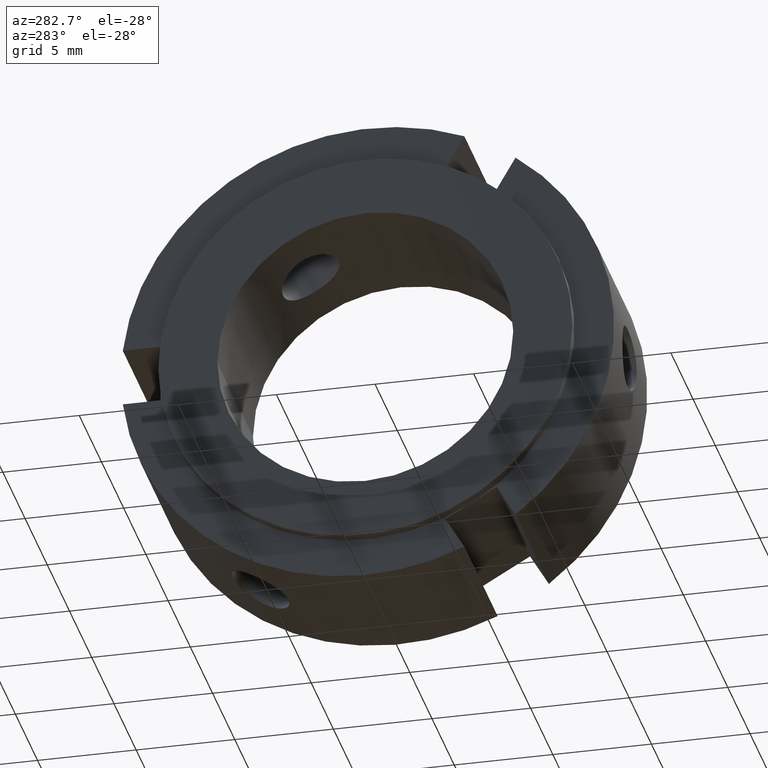
[diagram: clean part render]
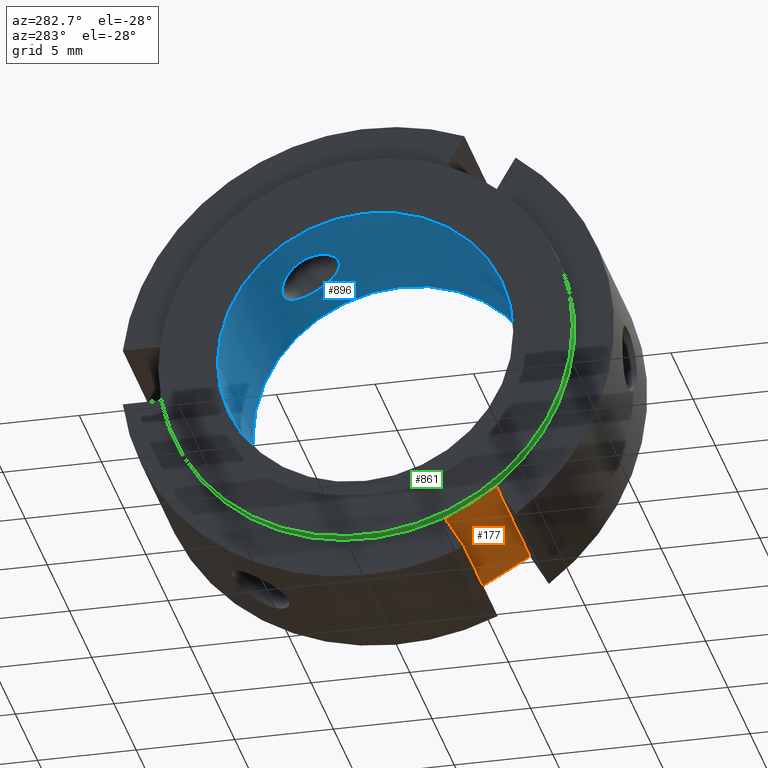
[diagram: same view with three faces highlighted in distinct colors, each labeled with its STEP entity id]
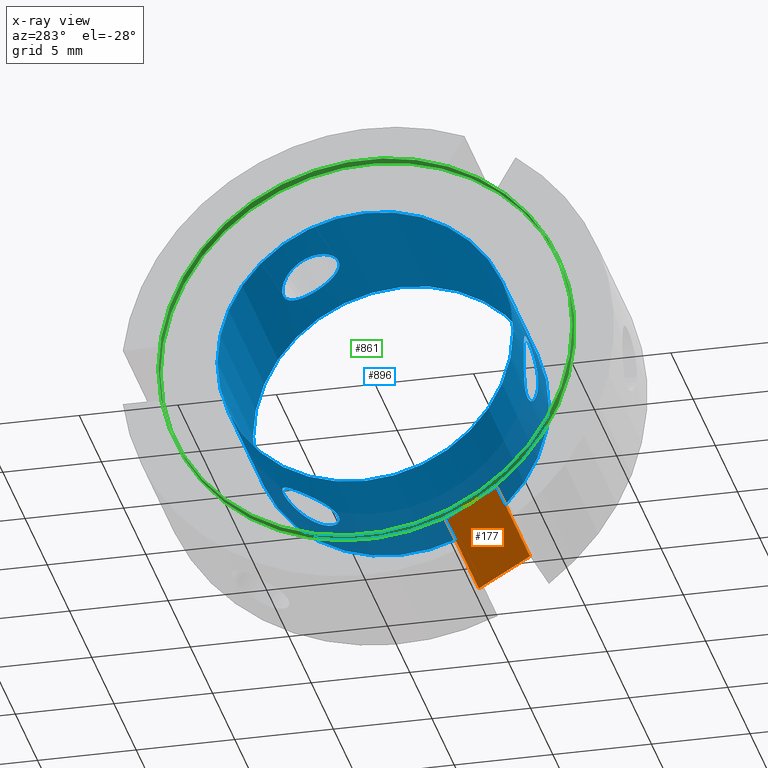
[diagram: x-ray of the same camera — body ghosted, the three highlighted faces saturated]
A machine part, auxiliary view with three faces highlighted in distinct colors.
The next image is the same camera in x-ray (body ghosted, the three faces saturated) — at least one of them is partly hidden behind the body in this view.
Their STEP definitions:

[orange] entity #177 — the highlighted planar face has unit normal (0, 0.5, 0.866).
#73=CARTESIAN_POINT('',(0.499999999999998,-6.549038105676662,-8.343266739736601));
#74=VERTEX_POINT('',#73);
#83=CARTESIAN_POINT('',(7.999999999999996,-6.549038105676662,-8.343266739736601));
#84=VERTEX_POINT('',#83);
#85=CARTESIAN_POINT('',(7.999999999999996,-6.549038105676662,-8.343266739736601));
#86=DIRECTION('',(-1.0,0.0,0.0));
#87=VECTOR('',#86,7.499999999999998);
#88=LINE('',#85,#87);
#89=EDGE_CURVE('',#84,#74,#88,.T.);
#115=CARTESIAN_POINT('',(0.499999999999998,-3.950961894323346,-9.843266739736604));
#116=VERTEX_POINT('',#115);
#131=CARTESIAN_POINT('',(7.999999999999996,-3.950961894323346,-9.843266739736604));
#132=VERTEX_POINT('',#131);
#139=CARTESIAN_POINT('',(7.999999999999996,-3.950961894323346,-9.843266739736604));
#140=DIRECTION('',(-1.0,0.0,0.0));
#141=VECTOR('',#140,7.499999999999998);
#142=LINE('',#139,#141);
#143=EDGE_CURVE('',#132,#116,#142,.T.);
#148=CARTESIAN_POINT('',(7.999999999999996,-3.950961894323346,-9.843266739736604));
#149=DIRECTION('',(0.0,0.500000000000001,0.866025403784438));
#150=DIRECTION('',(0.0,-0.866025403784438,0.500000000000000));
#151=AXIS2_PLACEMENT_3D('',#148,#149,#150);
#152=PLANE('',#151);
#153=CARTESIAN_POINT('',(0.499999999999998,-5.250000000000004,-9.093266739736603));
#154=VERTEX_POINT('',#153);
#155=CARTESIAN_POINT('',(0.499999999999998,-3.950961894323348,-9.843266739736604));
#156=DIRECTION('',(0.0,-0.866025403784438,0.500000000000000));
#157=VECTOR('',#156,1.500000000000002);
#158=LINE('',#155,#157);
#159=EDGE_CURVE('',#116,#154,#158,.T.);
#160=ORIENTED_EDGE('',*,*,#159,.F.);
#161=ORIENTED_EDGE('',*,*,#143,.F.);
#162=CARTESIAN_POINT('',(7.999999999999996,-6.549038105676665,-8.343266739736606));
#163=DIRECTION('',(0.0,0.866025403784438,-0.500000000000001));
#164=VECTOR('',#163,3.000000000000000);
#165=LINE('',#162,#164);
#166=EDGE_CURVE('',#84,#132,#165,.T.);
#167=ORIENTED_EDGE('',*,*,#166,.F.);
#168=ORIENTED_EDGE('',*,*,#89,.T.);
#169=CARTESIAN_POINT('',(0.499999999999998,-5.250000000000008,-9.093266739736603));
#170=DIRECTION('',(0.0,-0.866025403784438,0.500000000000000));
#171=VECTOR('',#170,1.499999999999999);
#172=LINE('',#169,#171);
#173=EDGE_CURVE('',#154,#74,#172,.T.);
#174=ORIENTED_EDGE('',*,*,#173,.F.);
#175=EDGE_LOOP('',(#160,#161,#167,#168,#174));
#176=FACE_OUTER_BOUND('',#175,.T.);
#177=ADVANCED_FACE('',(#176),#152,.F.);

[blue] entity #896 — the highlighted cylindrical surface (bore or boss wall) has radius 7.5 mm, axis along (1, 0, 0).
#224=CARTESIAN_POINT('',(3.999999999999996,5.065191645140263,5.531169279456314));
#225=VERTEX_POINT('',#224);
#226=CARTESIAN_POINT('',(3.999999999999996,5.065191645140262,5.531169279456316));
#227=CARTESIAN_POINT('',(3.795760596327584,5.065191645140262,5.531169279456316));
#228=CARTESIAN_POINT('',(3.578365321611677,5.034444204255705,5.559812424690974));
#229=CARTESIAN_POINT('',(3.179185575143308,4.907880269326058,5.671847473205590));
#230=CARTESIAN_POINT('',(2.997343182592460,4.811831646202085,5.754770154291286));
#231=CARTESIAN_POINT('',(2.710227675489291,4.585382960650870,5.936780539815729));
#232=CARTESIAN_POINT('',(2.585577148557246,4.439670778336843,6.048093746718918));
#233=CARTESIAN_POINT('',(2.419945764088577,4.110546511015053,6.276425891176426));
#234=CARTESIAN_POINT('',(2.378999999999996,3.926862906937423,6.393078681453308));
#235=CARTESIAN_POINT('',(2.378999999999996,3.573137093062583,6.597302375313268));
#236=CARTESIAN_POINT('',(2.419945764088576,3.380271011221649,6.698050647564736));
#237=CARTESIAN_POINT('',(2.585577148557244,3.017967439959973,6.868914551838593));
#238=CARTESIAN_POINT('',(2.710227675489293,2.848711283848089,6.939448399911818));
#239=CARTESIAN_POINT('',(2.997343182592461,2.577861323455713,7.044553521490543));
#240=CARTESIAN_POINT('',(3.179185575143306,2.458023863523594,7.086272728571573));
#241=CARTESIAN_POINT('',(3.578365321611677,2.297716697930890,7.139862787166261));
#242=CARTESIAN_POINT('',(3.795760596327583,2.257537286071107,7.152169279456317));
#243=CARTESIAN_POINT('',(4.204239403672409,2.257537286071107,7.152169279456317));
#244=CARTESIAN_POINT('',(4.421634678388315,2.297716697930890,7.139862787166261));
#245=CARTESIAN_POINT('',(4.820814424856684,2.458023863523593,7.086272728571573));
#246=CARTESIAN_POINT('',(5.002656817407530,2.577861323455712,7.044553521490543));
#247=CARTESIAN_POINT('',(5.289772324510699,2.848711283848088,6.939448399911818));
#248=CARTESIAN_POINT('',(5.414422851442748,3.017967439959973,6.868914551838593));
#249=CARTESIAN_POINT('',(5.580054235911415,3.380271011221649,6.698050647564735));
#250=CARTESIAN_POINT('',(5.620999999999996,3.573137093062583,6.597302375313268));
#251=CARTESIAN_POINT('',(5.620999999999996,3.926862906937423,6.393078681453308));
#252=CARTESIAN_POINT('',(5.580054235911415,4.110546511015053,6.276425891176425));
#253=CARTESIAN_POINT('',(5.414422851442745,4.439670778336843,6.048093746718917));
#254=CARTESIAN_POINT('',(5.289772324510700,4.585382960650870,5.936780539815729));
#255=CARTESIAN_POINT('',(5.002656817407532,4.811831646202085,5.754770154291286));
#256=CARTESIAN_POINT('',(4.820814424856684,4.907880269326058,5.671847473205590));
#257=CARTESIAN_POINT('',(4.421634678388314,5.034444204255705,5.559812424690974));
#258=CARTESIAN_POINT('',(4.204239403672407,5.065191645140262,5.531169279456315));
#259=CARTESIAN_POINT('',(3.999999999999996,5.065191645140262,5.531169279456315));
#260=B_SPLINE_CURVE_WITH_KNOTS('',3,(#226,#227,#228,#229,#230,#231,#232,#233,#234,#235,#236,#237,#238,#239,#240,#241,#242,#243,#244,#245,#246,#247,#248,#249,#250,#251,#252,#253,#254,#255,#256,#257,#258,#259),.UNSPECIFIED.,.T.,.U.,(4,2,2,2,2,2,2,2,2,2,2,2,2,2,2,2,4),(0.0,0.061271821101724,0.122543642203447,0.183810750361435,0.245077858519422,0.306344966677410,0.367612074835397,0.428883895937121,0.490155717038845,0.551427538140569,0.612699359242293,0.673966467400280,0.735233575558268,0.796500683716255,0.857767791874243,0.919039612975966,0.980311434077690),.UNSPECIFIED.);
#261=EDGE_CURVE('',#225,#225,#260,.T.);
#422=CARTESIAN_POINT('',(3.999999999999996,2.257537286071108,-7.152169279456317));
#423=VERTEX_POINT('',#422);
#424=CARTESIAN_POINT('',(3.999999999999996,2.257537286071107,-7.152169279456317));
#425=CARTESIAN_POINT('',(3.795760596327584,2.257537286071107,-7.152169279456317));
#426=CARTESIAN_POINT('',(3.578365321611675,2.297716697930886,-7.139862787166262));
#427=CARTESIAN_POINT('',(3.179185575143305,2.458023863523590,-7.086272728571574));
#428=CARTESIAN_POINT('',(2.997343182592460,2.577861323455709,-7.044553521490540));
#429=CARTESIAN_POINT('',(2.710227675489292,2.848711283848084,-6.939448399911814));
#430=CARTESIAN_POINT('',(2.585577148557245,3.017967439959970,-6.868914551838595));
#431=CARTESIAN_POINT('',(2.419945764088577,3.380271011221645,-6.698050647564737));
#432=CARTESIAN_POINT('',(2.378999999999996,3.573137093062578,-6.597302375313268));
#433=CARTESIAN_POINT('',(2.378999999999996,3.926862906937418,-6.393078681453311));
#434=CARTESIAN_POINT('',(2.419945764088578,4.110546511015047,-6.276425891176429));
#435=CARTESIAN_POINT('',(2.585577148557245,4.439670778336838,-6.048093746718921));
#436=CARTESIAN_POINT('',(2.710227675489292,4.585382960650863,-5.936780539815736));
#437=CARTESIAN_POINT('',(2.997343182592460,4.811831646202078,-5.754770154291292));
#438=CARTESIAN_POINT('',(3.179185575143305,4.907880269326054,-5.671847473205594));
#439=CARTESIAN_POINT('',(3.578365321611676,5.034444204255701,-5.559812424690978));
#440=CARTESIAN_POINT('',(3.795760596327583,5.065191645140258,-5.531169279456317));
#441=CARTESIAN_POINT('',(4.204239403672409,5.065191645140258,-5.531169279456317));
#442=CARTESIAN_POINT('',(4.421634678388315,5.034444204255703,-5.559812424690978));
#443=CARTESIAN_POINT('',(4.820814424856686,4.907880269326054,-5.671847473205594));
#444=CARTESIAN_POINT('',(5.002656817407532,4.811831646202078,-5.754770154291292));
#445=CARTESIAN_POINT('',(5.289772324510700,4.585382960650863,-5.936780539815736));
#446=CARTESIAN_POINT('',(5.414422851442748,4.439670778336837,-6.048093746718921));
#447=CARTESIAN_POINT('',(5.580054235911415,4.110546511015047,-6.276425891176429));
#448=CARTESIAN_POINT('',(5.620999999999996,3.926862906937418,-6.393078681453311));
#449=CARTESIAN_POINT('',(5.620999999999996,3.573137093062578,-6.597302375313268));
#450=CARTESIAN_POINT('',(5.580054235911415,3.380271011221645,-6.698050647564737));
#451=CARTESIAN_POINT('',(5.414422851442748,3.017967439959972,-6.868914551838595));
#452=CARTESIAN_POINT('',(5.289772324510700,2.848711283848084,-6.939448399911814));
#453=CARTESIAN_POINT('',(5.002656817407532,2.577861323455709,-7.044553521490540));
#454=CARTESIAN_POINT('',(4.820814424856687,2.458023863523590,-7.086272728571574));
#455=CARTESIAN_POINT('',(4.421634678388316,2.297716697930886,-7.139862787166262));
#456=CARTESIAN_POINT('',(4.204239403672409,2.257537286071107,-7.152169279456317));
#457=CARTESIAN_POINT('',(3.999999999999996,2.257537286071107,-7.152169279456317));
#458=B_SPLINE_CURVE_WITH_KNOTS('',3,(#424,#425,#426,#427,#428,#429,#430,#431,#432,#433,#434,#435,#436,#437,#438,#439,#440,#441,#442,#443,#444,#445,#446,#447,#448,#449,#450,#451,#452,#453,#454,#455,#456,#457),.UNSPECIFIED.,.T.,.U.,(4,2,2,2,2,2,2,2,2,2,2,2,2,2,2,2,4),(0.0,0.061271821101724,0.122543642203448,0.183810750361435,0.245077858519422,0.306344966677410,0.367612074835397,0.428883895937121,0.490155717038844,0.551427538140568,0.612699359242292,0.673966467400279,0.735233575558267,0.796500683716254,0.857767791874241,0.919039612975965,0.980311434077689),.UNSPECIFIED.);
#459=EDGE_CURVE('',#423,#423,#458,.T.);
#592=CARTESIAN_POINT('',(7.999999999999997,7.500000000000000,0.0));
#593=VERTEX_POINT('',#592);
#594=CARTESIAN_POINT('',(7.999999999999997,0.0,0.0));
#595=DIRECTION('',(1.0,0.0,0.0));
#596=DIRECTION('',(0.0,1.0,0.0));
#597=AXIS2_PLACEMENT_3D('',#594,#595,#596);
#598=CIRCLE('',#597,7.500000000000000);
#599=EDGE_CURVE('',#593,#593,#598,.T.);
#713=CARTESIAN_POINT('',(3.999999999999996,-7.322728931211369,1.621000000000000));
#714=VERTEX_POINT('',#713);
#715=CARTESIAN_POINT('',(3.999999999999996,-7.322728931211369,1.621000000000000));
#716=CARTESIAN_POINT('',(3.795760596327583,-7.322728931211369,1.621000000000000));
#717=CARTESIAN_POINT('',(3.578365321611676,-7.332160902186593,1.580050362475285));
#718=CARTESIAN_POINT('',(3.179185575143306,-7.365904132849650,1.414425255365981));
#719=CARTESIAN_POINT('',(2.997343182592460,-7.389692969657792,1.289783367199251));
#720=CARTESIAN_POINT('',(2.710227675489292,-7.434094244498953,1.002667860096083));
#721=CARTESIAN_POINT('',(2.585577148557245,-7.457638218296810,0.820820805119673));
#722=CARTESIAN_POINT('',(2.419945764088577,-7.490817522236696,0.421624756388309));
#723=CARTESIAN_POINT('',(2.378999999999996,-7.500000000000000,0.204223693859958));
#724=CARTESIAN_POINT('',(2.378999999999996,-7.500000000000000,-0.204223693859958));
#725=CARTESIAN_POINT('',(2.419945764088577,-7.490817522236696,-0.421624756388309));
#726=CARTESIAN_POINT('',(2.585577148557245,-7.457638218296810,-0.820820805119673));
#727=CARTESIAN_POINT('',(2.710227675489292,-7.434094244498953,-1.002667860096083));
#728=CARTESIAN_POINT('',(2.997343182592460,-7.389692969657792,-1.289783367199251));
#729=CARTESIAN_POINT('',(3.179185575143305,-7.365904132849648,-1.414425255365981));
#730=CARTESIAN_POINT('',(3.578365321611675,-7.332160902186590,-1.580050362475285));
#731=CARTESIAN_POINT('',(3.795760596327583,-7.322728931211369,-1.621000000000000));
#732=CARTESIAN_POINT('',(4.204239403672409,-7.322728931211369,-1.621000000000000));
#733=CARTESIAN_POINT('',(4.421634678388316,-7.332160902186590,-1.580050362475285));
#734=CARTESIAN_POINT('',(4.820814424856686,-7.365904132849648,-1.414425255365981));
#735=CARTESIAN_POINT('',(5.002656817407532,-7.389692969657792,-1.289783367199252));
#736=CARTESIAN_POINT('',(5.289772324510700,-7.434094244498953,-1.002667860096084));
#737=CARTESIAN_POINT('',(5.414422851442748,-7.457638218296810,-0.820820805119674));
#738=CARTESIAN_POINT('',(5.580054235911415,-7.490817522236696,-0.421624756388309));
#739=CARTESIAN_POINT('',(5.620999999999996,-7.500000000000000,-0.204223693859958));
#740=CARTESIAN_POINT('',(5.620999999999996,-7.500000000000000,0.204223693859958));
#741=CARTESIAN_POINT('',(5.580054235911415,-7.490817522236696,0.421624756388309));
#742=CARTESIAN_POINT('',(5.414422851442748,-7.457638218296810,0.820820805119673));
#743=CARTESIAN_POINT('',(5.289772324510700,-7.434094244498953,1.002667860096083));
#744=CARTESIAN_POINT('',(5.002656817407532,-7.389692969657792,1.289783367199251));
#745=CARTESIAN_POINT('',(4.820814424856686,-7.365904132849650,1.414425255365981));
#746=CARTESIAN_POINT('',(4.421634678388316,-7.332160902186593,1.580050362475285));
#747=CARTESIAN_POINT('',(4.204239403672409,-7.322728931211369,1.621000000000000));
#748=CARTESIAN_POINT('',(3.999999999999996,-7.322728931211369,1.621000000000000));
#749=B_SPLINE_CURVE_WITH_KNOTS('',3,(#715,#716,#717,#718,#719,#720,#721,#722,#723,#724,#725,#726,#727,#728,#729,#730,#731,#732,#733,#734,#735,#736,#737,#738,#739,#740,#741,#742,#743,#744,#745,#746,#747,#748),.UNSPECIFIED.,.T.,.U.,(4,2,2,2,2,2,2,2,2,2,2,2,2,2,2,2,4),(0.0,0.061271821101724,0.122543642203448,0.183810750361435,0.245077858519422,0.306344966677410,0.367612074835397,0.428883895937121,0.490155717038845,0.551427538140568,0.612699359242292,0.673966467400280,0.735233575558267,0.796500683716254,0.857767791874242,0.919039612975966,0.980311434077690),.UNSPECIFIED.);
#750=EDGE_CURVE('',#714,#714,#749,.T.);
#830=CARTESIAN_POINT('',(-1.402514E-015,7.500000000000000,0.0));
#831=VERTEX_POINT('',#830);
#832=CARTESIAN_POINT('',(-1.402958E-015,0.0,0.0));
#833=DIRECTION('',(1.0,0.0,0.0));
#834=DIRECTION('',(0.0,1.0,0.0));
#835=AXIS2_PLACEMENT_3D('',#832,#833,#834);
#836=CIRCLE('',#835,7.500000000000000);
#837=EDGE_CURVE('',#831,#831,#836,.T.);
#876=CARTESIAN_POINT('',(3.999999999999998,0.0,0.0));
#877=DIRECTION('',(1.0,0.0,0.0));
#878=DIRECTION('',(0.0,1.0,0.0));
#879=AXIS2_PLACEMENT_3D('',#876,#877,#878);
#880=CYLINDRICAL_SURFACE('',#879,7.500000000000000);
#881=ORIENTED_EDGE('',*,*,#837,.F.);
#882=EDGE_LOOP('',(#881));
#883=FACE_OUTER_BOUND('',#882,.T.);
#884=ORIENTED_EDGE('',*,*,#261,.T.);
#885=EDGE_LOOP('',(#884));
#886=FACE_BOUND('',#885,.T.);
#887=ORIENTED_EDGE('',*,*,#459,.T.);
#888=EDGE_LOOP('',(#887));
#889=FACE_BOUND('',#888,.T.);
#890=ORIENTED_EDGE('',*,*,#750,.T.);
#891=EDGE_LOOP('',(#890));
#892=FACE_BOUND('',#891,.T.);
#893=ORIENTED_EDGE('',*,*,#599,.T.);
#894=EDGE_LOOP('',(#893));
#895=FACE_BOUND('',#894,.T.);
#896=ADVANCED_FACE('',(#883,#886,#889,#892,#895),#880,.F.);

[green] entity #861 — the highlighted cylindrical surface (bore or boss wall) has radius 10.5 mm, axis along (1, 0, 0).
#153=CARTESIAN_POINT('',(0.499999999999998,-5.250000000000004,-9.093266739736603));
#154=VERTEX_POINT('',#153);
#351=CARTESIAN_POINT('',(0.499999999999998,-5.249999999999996,9.093266739736608));
#352=VERTEX_POINT('',#351);
#488=CARTESIAN_POINT('',(0.499999999999998,10.499999999999998,0.0));
#489=VERTEX_POINT('',#488);
#496=CARTESIAN_POINT('',(0.499999999999998,0.0,0.0));
#497=DIRECTION('',(1.0,0.0,0.0));
#498=DIRECTION('',(0.0,1.0,0.0));
#499=AXIS2_PLACEMENT_3D('',#496,#497,#498);
#500=CIRCLE('',#499,10.499999999999998);
#501=EDGE_CURVE('',#489,#352,#500,.T.);
#522=CARTESIAN_POINT('',(0.499999999999998,0.0,0.0));
#523=DIRECTION('',(1.0,0.0,0.0));
#524=DIRECTION('',(0.0,1.0,0.0));
#525=AXIS2_PLACEMENT_3D('',#522,#523,#524);
#526=CIRCLE('',#525,10.499999999999998);
#527=EDGE_CURVE('',#352,#154,#526,.T.);
#819=CARTESIAN_POINT('',(-2.220446E-015,10.499999999999998,0.0));
#820=VERTEX_POINT('',#819);
#821=CARTESIAN_POINT('',(-2.220446E-015,0.0,0.0));
#822=DIRECTION('',(1.0,0.0,0.0));
#823=DIRECTION('',(0.0,1.0,0.0));
#824=AXIS2_PLACEMENT_3D('',#821,#822,#823);
#825=CIRCLE('',#824,10.499999999999998);
#826=EDGE_CURVE('',#820,#820,#825,.T.);
#842=CARTESIAN_POINT('',(0.249999999999998,0.0,0.0));
#843=DIRECTION('',(1.0,0.0,0.0));
#844=DIRECTION('',(0.0,1.0,0.0));
#845=AXIS2_PLACEMENT_3D('',#842,#843,#844);
#846=CYLINDRICAL_SURFACE('',#845,10.499999999999998);
#847=ORIENTED_EDGE('',*,*,#501,.F.);
#848=CARTESIAN_POINT('',(0.499999999999998,0.0,0.0));
#849=DIRECTION('',(1.0,0.0,0.0));
#850=DIRECTION('',(0.0,1.0,0.0));
#851=AXIS2_PLACEMENT_3D('',#848,#849,#850);
#852=CIRCLE('',#851,10.499999999999998);
#853=EDGE_CURVE('',#154,#489,#852,.T.);
#854=ORIENTED_EDGE('',*,*,#853,.F.);
#855=ORIENTED_EDGE('',*,*,#527,.F.);
#856=EDGE_LOOP('',(#847,#854,#855));
#857=FACE_OUTER_BOUND('',#856,.T.);
#858=ORIENTED_EDGE('',*,*,#826,.T.);
#859=EDGE_LOOP('',(#858));
#860=FACE_BOUND('',#859,.T.);
#861=ADVANCED_FACE('',(#857,#860),#846,.T.);